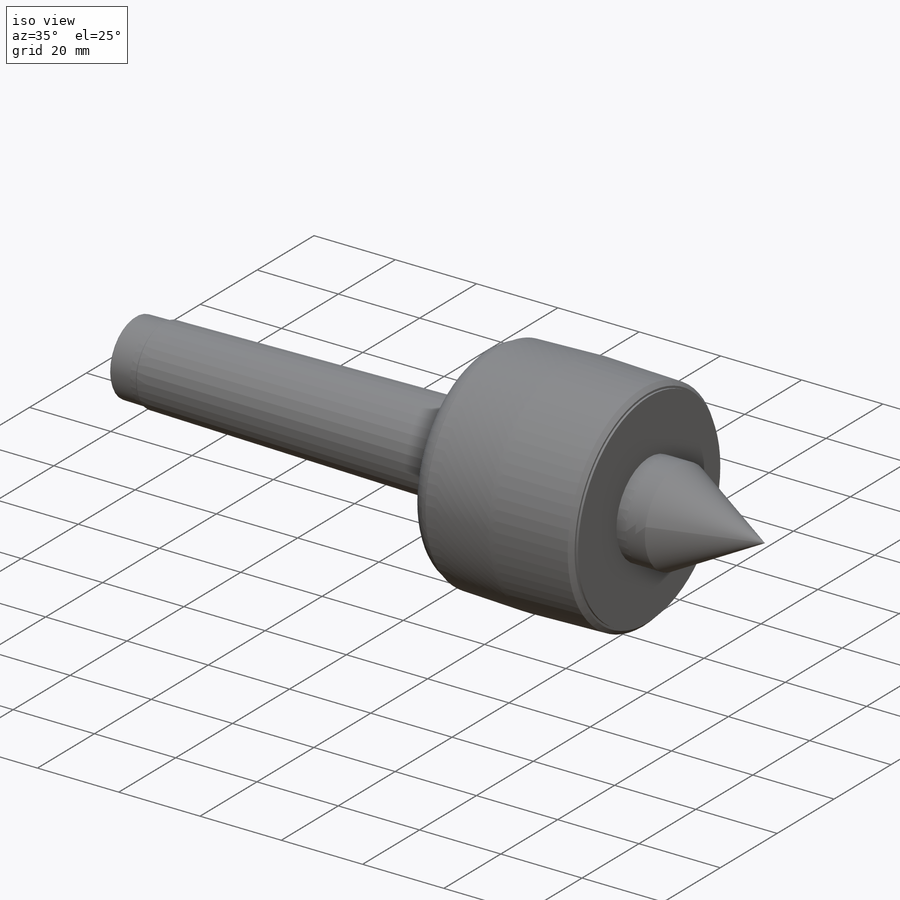
[diagram: iso view]
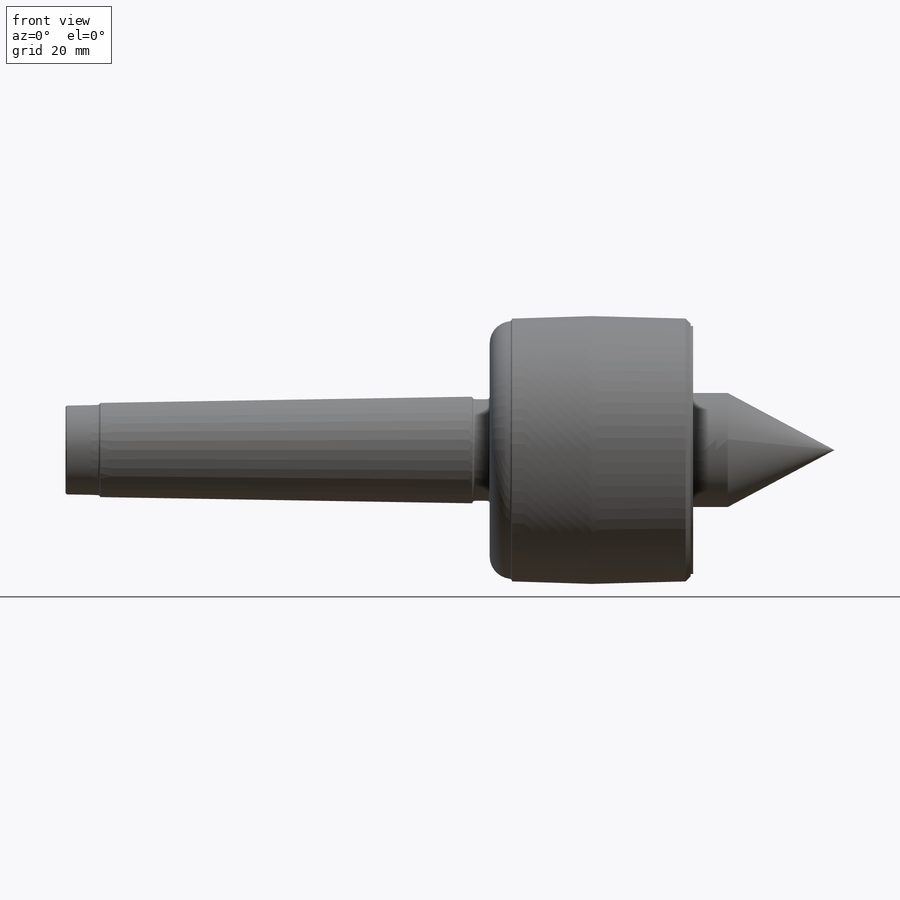
[diagram: front view]
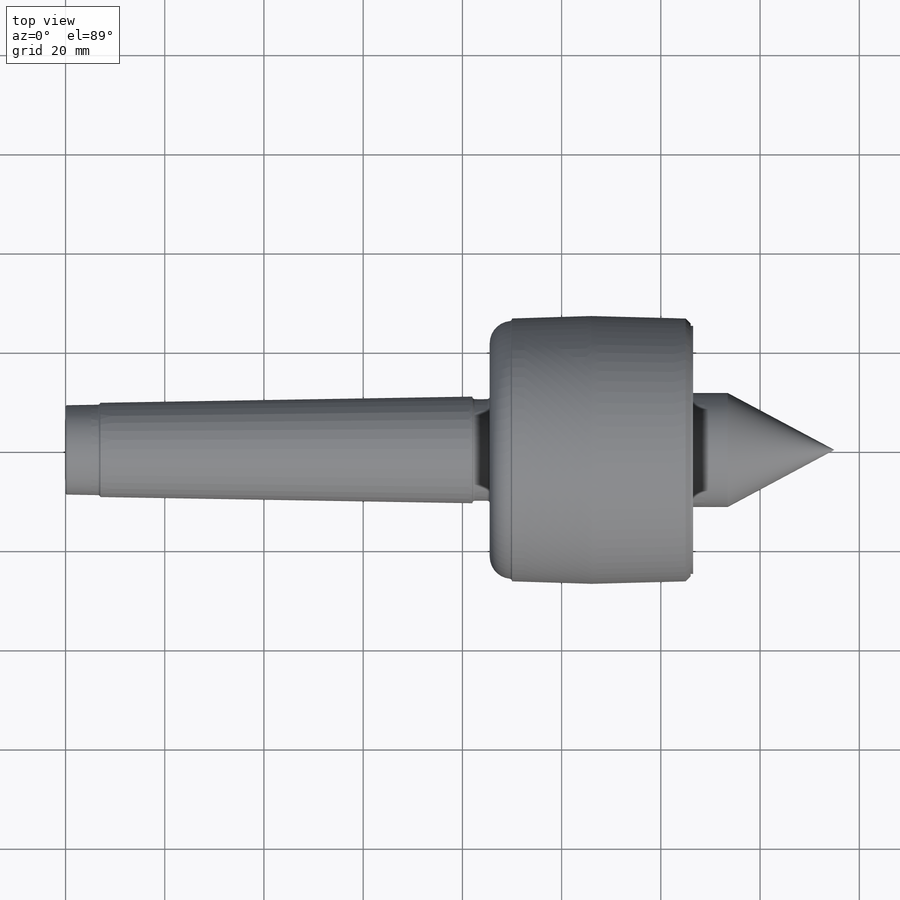
[diagram: top view]
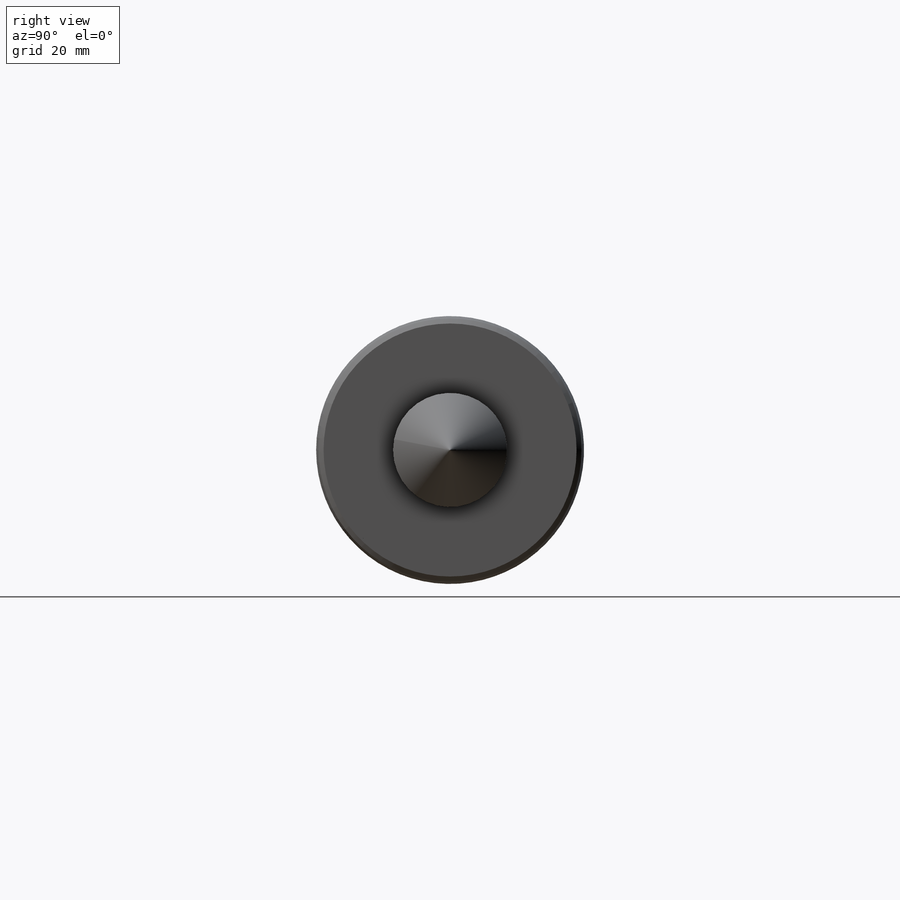
[diagram: right view]
SOLIDWORKS PART (.sldprt)
format: sldprt  version: not decoded by parser v0  size: 413,184 bytes
history: native  units: mm
features: sketch x2, chamfer x2, material x1, revolve x1, fillet x1, cut_extrude x1 (+16 scaffold rows collapsed)
feature tree (24):
  scaffold x16  (default folders/planes/origin — collapsed)
  material  "Material <not specified>"
  sketch  "Sketch1"  dims[c1.D15=4.5mm c1.D16=4.5mm c1.D1=155.0mm c1.D2=9.0mm c1.D3=7.0mm c1.D4=9.5mm c1.D5=75.0mm c1.D6=10.75mm c1.D7=10.25mm c1.D8=3.5mm c1.D9=0.5mm c1.D10=4.5mm c1.D11=0.5mm c1.D12=0.5mm c1.D13=35.0mm c1.D14=16.0mm c2.D9=~38.078293mm c2.D10=0.5mm c3.D9=~23.328293mm c3.D16=~33.578293mm c4.D9=21.5mm c4.D16=~23.48261mm c5.D16=90.0deg c6.D16=4.5mm c6.D17=4.5mm c6.D18=1.0mm c6.D19=1.0mm c6.D20=0.5mm c6.D21=0.5mm c6.D22=11.5mm c6.D23=7.0mm]
  revolve  "Revolve1"  Angle=360deg
  chamfer  "Chamfer1"  Distance=0.25mm Angle=45deg
  fillet  "Fillet1"  Radius=0.5mm
  sketch  "Sketch2"  dims[D1=10.5mm]
  cut_extrude  "Extrude1"  Depth=43mm
  chamfer  "Chamfer2"  Distance=0.25mm Angle=45deg
decode coverage: 7 of 7 modeling features carry decoded parameters
note: ~ marks probable driven/reference dimensions
note: suppression state not decoded; provenance and decode notes live in map.json
